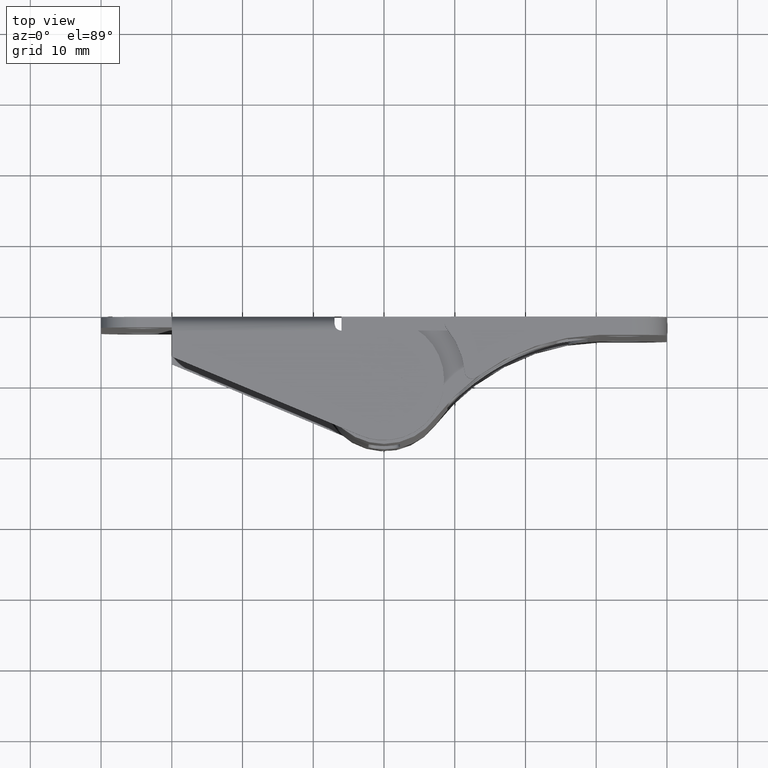
[diagram: clean part render]
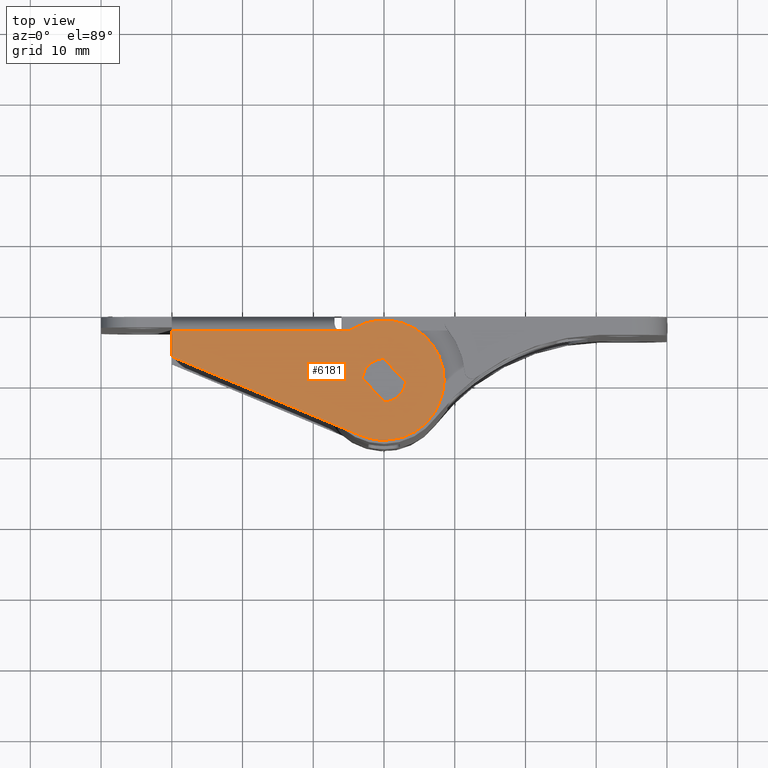
[diagram: same view with one face highlighted and labeled with its STEP entity id]
A machine part, top view. The second image highlights one B-rep face of the part: STEP entity #6181.
In plain terms, the highlighted face is a freeform B-spline surface patch.
Its self-contained STEP definition (entity closure, byte-faithful):
#5249=CARTESIAN_POINT('',(-30.000007999999902,7.0,63.0));
#5250=VERTEX_POINT('',#5249);
#5264=CARTESIAN_POINT('',(-6.000014999999790,7.0,63.0));
#5265=VERTEX_POINT('',#5264);
#5266=CARTESIAN_POINT('',(-6.000014999999790,7.0,63.0));
#5267=CARTESIAN_POINT('',(-30.000007999999902,7.0,63.0));
#5268=QUASI_UNIFORM_CURVE('',1,(#5266,#5267),.UNSPECIFIED.,.F.,.U.);
#5269=EDGE_CURVE('',#5265,#5250,#5268,.T.);
#5476=CARTESIAN_POINT('',(-3.043405720741325,0.200453533166551,63.0));
#5477=VERTEX_POINT('',#5476);
#5483=CARTESIAN_POINT('',(0.094112862843491,-3.048547649135140,63.0));
#5484=VERTEX_POINT('',#5483);
#5485=CARTESIAN_POINT('',(-3.043405720741325,0.200453533166551,63.0));
#5486=CARTESIAN_POINT('',(0.094112862843491,-3.048547649135140,63.0));
#5487=QUASI_UNIFORM_CURVE('',1,(#5485,#5486),.UNSPECIFIED.,.F.,.U.);
#5488=EDGE_CURVE('',#5477,#5484,#5487,.T.);
#5513=CARTESIAN_POINT('',(3.043406064729820,-0.200448310458700,63.0));
#5514=VERTEX_POINT('',#5513);
#5515=CARTESIAN_POINT('',(3.043406064729821,-0.200448310458701,63.0));
#5516=CARTESIAN_POINT('',(2.861448054711442,-2.963116201990756,62.999999999999993));
#5517=CARTESIAN_POINT('',(0.094112862843491,-3.048547649135143,63.0));
#5525=(BOUNDED_CURVE()B_SPLINE_CURVE(2,(#5515,#5516,#5517),.UNSPECIFIED.,.F.,.U.)CURVE()GEOMETRIC_REPRESENTATION_ITEM()QUASI_UNIFORM_CURVE()RATIONAL_B_SPLINE_CURVE((1.0,0.740432113178304,1.0))REPRESENTATION_ITEM(''));
#5526=EDGE_CURVE('',#5514,#5484,#5525,.T.);
#5564=CARTESIAN_POINT('',(-0.094115708604838,3.048547561281240,63.0));
#5565=VERTEX_POINT('',#5564);
#5566=CARTESIAN_POINT('',(3.043406064729820,-0.200448310458700,63.0));
#5567=CARTESIAN_POINT('',(-0.094115708604838,3.048547561281240,63.0));
#5568=QUASI_UNIFORM_CURVE('',1,(#5566,#5567),.UNSPECIFIED.,.F.,.U.);
#5569=EDGE_CURVE('',#5514,#5565,#5568,.T.);
#5596=CARTESIAN_POINT('',(-3.043405720741329,0.200453533166551,63.0));
#5597=CARTESIAN_POINT('',(-2.861443454161649,2.963113758304769,62.999999999999993));
#5598=CARTESIAN_POINT('',(-0.094115708604840,3.048547561281243,63.0));
#5606=(BOUNDED_CURVE()B_SPLINE_CURVE(2,(#5596,#5597,#5598),.UNSPECIFIED.,.F.,.U.)CURVE()GEOMETRIC_REPRESENTATION_ITEM()QUASI_UNIFORM_CURVE()RATIONAL_B_SPLINE_CURVE((1.0,0.740433003601684,1.0))REPRESENTATION_ITEM(''));
#5607=EDGE_CURVE('',#5477,#5565,#5606,.T.);
#6114=CARTESIAN_POINT('',(-31.922552994207141,-9.348054708095825,63.0));
#6115=CARTESIAN_POINT('',(10.411936365416880,-9.348054708095825,63.0));
#6116=CARTESIAN_POINT('',(-31.922552994207141,9.346938413829850,63.0));
#6117=CARTESIAN_POINT('',(10.411936365416880,9.346938413829850,63.0));
#6118=B_SPLINE_SURFACE_WITH_KNOTS('',1,1,((#6114,#6116),(#6115,#6117)),.UNSPECIFIED.,.F.,.F.,.U.,(2,2),(2,2),(0.0,42.334489359624023),(0.0,18.694993121925680),.UNSPECIFIED.);
#6119=CARTESIAN_POINT('',(-5.123489052359680,7.0,63.0));
#6120=VERTEX_POINT('',#6119);
#6121=CARTESIAN_POINT('',(-5.123489052359680,7.0,63.0));
#6122=CARTESIAN_POINT('',(-6.000014999999790,7.0,63.0));
#6123=QUASI_UNIFORM_CURVE('',1,(#6121,#6122),.UNSPECIFIED.,.F.,.U.);
#6124=EDGE_CURVE('',#6120,#5265,#6123,.T.);
#6125=ORIENTED_EDGE('',*,*,#6124,.T.);
#6126=ORIENTED_EDGE('',*,*,#5269,.T.);
#6127=CARTESIAN_POINT('',(-30.000007999999902,3.321987000000000,63.0));
#6128=VERTEX_POINT('',#6127);
#6129=CARTESIAN_POINT('',(-30.000007999999902,7.0,63.0));
#6130=CARTESIAN_POINT('',(-30.000007999999902,3.321987000000000,63.0));
#6131=QUASI_UNIFORM_CURVE('',1,(#6129,#6130),.UNSPECIFIED.,.F.,.U.);
#6132=EDGE_CURVE('',#5250,#6128,#6131,.T.);
#6133=ORIENTED_EDGE('',*,*,#6132,.T.);
#6134=CARTESIAN_POINT('',(-3.276809999999900,-7.842995000000000,63.0));
#6135=VERTEX_POINT('',#6134);
#6136=CARTESIAN_POINT('',(-30.000007999999902,3.321987000000000,63.0));
#6137=CARTESIAN_POINT('',(-3.276809999999900,-7.842995000000000,63.0));
#6138=QUASI_UNIFORM_CURVE('',1,(#6136,#6137),.UNSPECIFIED.,.F.,.U.);
#6139=EDGE_CURVE('',#6128,#6135,#6138,.T.);
#6140=ORIENTED_EDGE('',*,*,#6139,.T.);
#6141=CARTESIAN_POINT('',(-4.584170824690100,7.157889203533410,63.0));
#6142=VERTEX_POINT('',#6141);
#6143=CARTESIAN_POINT('',(-4.584170824690100,7.157889203533410,63.0));
#6144=CARTESIAN_POINT('',(1.257551895074683,10.899139927492818,63.000000000000007));
#6145=CARTESIAN_POINT('',(6.093784129977254,5.925857560400513,63.0));
#6146=CARTESIAN_POINT('',(10.930016364879824,0.952575193308209,63.000000000000007));
#6147=CARTESIAN_POINT('',(7.027028586840112,-4.782350737264031,63.0));
#6148=CARTESIAN_POINT('',(3.124040808800400,-10.517276667836272,63.000000000000007));
#6149=CARTESIAN_POINT('',(-3.276809999999900,-7.842995000000000,63.0));
#6157=(BOUNDED_CURVE()B_SPLINE_CURVE(2,(#6143,#6144,#6145,#6146,#6147,#6148,#6149),.UNSPECIFIED.,.F.,.U.)B_SPLINE_CURVE_WITH_KNOTS((3,2,2,3),(0.0,0.333333333333333,0.666666666666667,1.0),.UNSPECIFIED.)CURVE()GEOMETRIC_REPRESENTATION_ITEM()RATIONAL_B_SPLINE_CURVE((1.0,0.774738204003550,1.0,0.774738204003550,1.0,0.774738204003550,1.0))REPRESENTATION_ITEM(''));
#6158=EDGE_CURVE('',#6142,#6135,#6157,.T.);
#6159=ORIENTED_EDGE('',*,*,#6158,.F.);
#6160=CARTESIAN_POINT('',(-4.584170824690100,7.157889203533410,63.0));
#6161=CARTESIAN_POINT('',(-4.830716366476331,6.999996892527468,63.0));
#6162=CARTESIAN_POINT('',(-5.123489052359680,7.0,63.0));
#6170=(BOUNDED_CURVE()B_SPLINE_CURVE(2,(#6160,#6161,#6162),.UNSPECIFIED.,.F.,.U.)CURVE()GEOMETRIC_REPRESENTATION_ITEM()QUASI_UNIFORM_CURVE()RATIONAL_B_SPLINE_CURVE((1.0,0.959714693005681,1.0))REPRESENTATION_ITEM(''));
#6171=EDGE_CURVE('',#6142,#6120,#6170,.T.);
#6172=ORIENTED_EDGE('',*,*,#6171,.T.);
#6173=EDGE_LOOP('',(#6125,#6126,#6133,#6140,#6159,#6172));
#6174=FACE_OUTER_BOUND('',#6173,.T.);
#6175=ORIENTED_EDGE('',*,*,#5526,.T.);
#6176=ORIENTED_EDGE('',*,*,#5488,.F.);
#6177=ORIENTED_EDGE('',*,*,#5607,.T.);
#6178=ORIENTED_EDGE('',*,*,#5569,.F.);
#6179=EDGE_LOOP('',(#6175,#6176,#6177,#6178));
#6180=FACE_BOUND('',#6179,.T.);
#6181=ADVANCED_FACE('',(#6174,#6180),#6118,.T.);